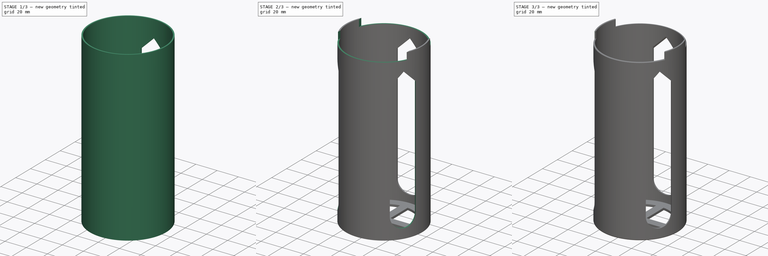
[diagram: build sequence overview — one tinted view per stage of 3, left to right]
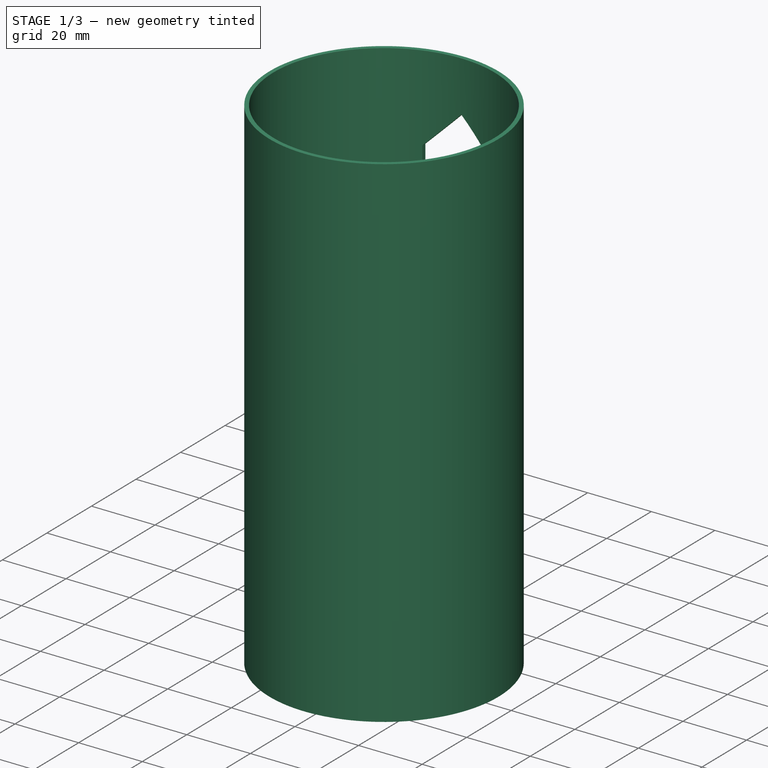
[diagram: stage 1 of 3 — iso view after this stage's code; geometry added in this stage tinted green]
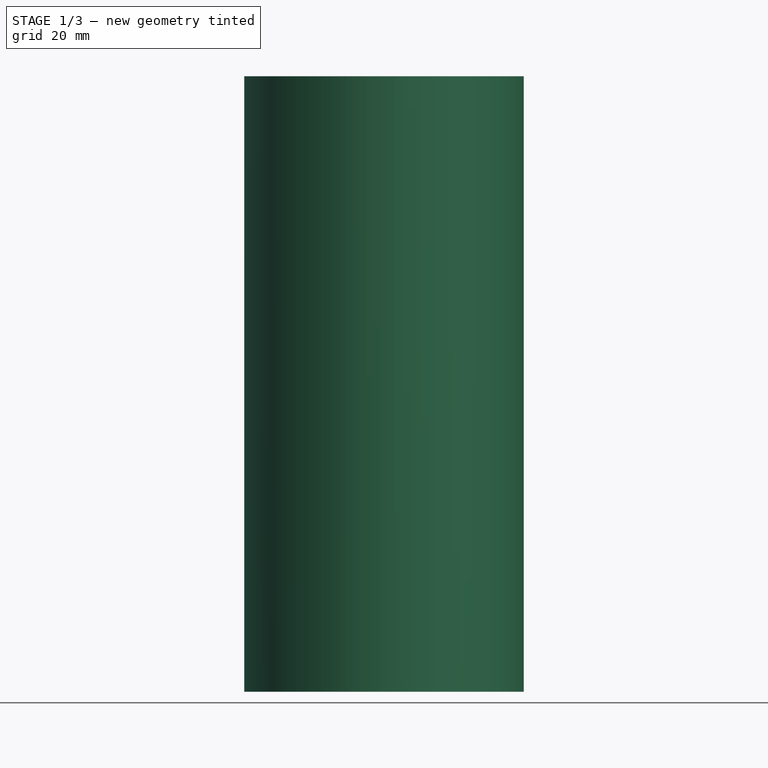
[diagram: stage 1 of 3 — front view after this stage's code; geometry added in this stage tinted green]
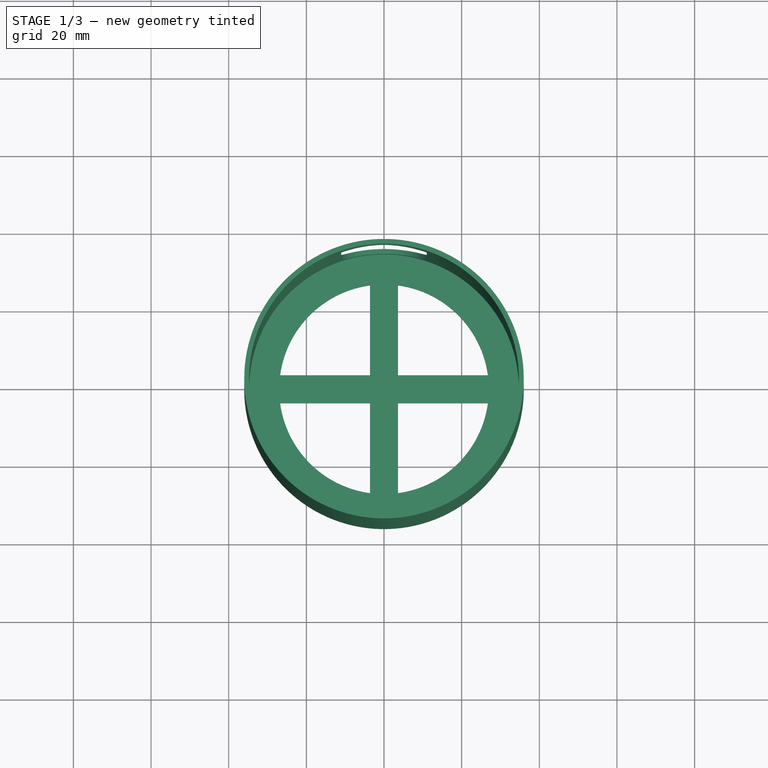
[diagram: stage 1 of 3 — top view after this stage's code; geometry added in this stage tinted green]
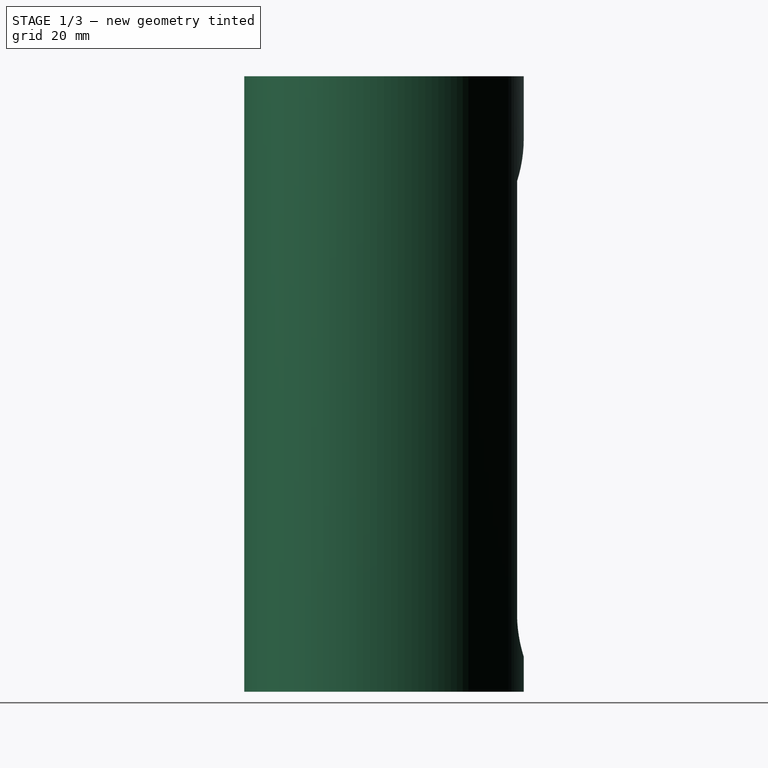
[diagram: stage 1 of 3 — right view after this stage's code; geometry added in this stage tinted green]
FCSTD DOCUMENT  (FreeCAD 2023.131R26244 +5365 (Git))
Label: Mason Jar Petri Dish Holder
License: All rights reserved
LicenseURL: http://en.wikipedia.org/wiki/All_rights_reserved
objects: Sketcher::SketchObject×4, PartDesign::Pad×2, PartDesign::Pocket×2, PartDesign::Fillet×2, Spreadsheet::Sheet×1, PartDesign::PolarPattern×1, PartDesign::Chamfer×1, PartDesign::Body×1
note: 33 computed .brp shape members not serialized (recipe doc carries the construction recipe); baked Part::Feature solids carry a one-line shape summary decoded from their .brp

FEATURE [Spreadsheet::Sheet] Spreadsheet  label="Parameters"
  PythonMode = false
  ShowCells = 0
  TreeRank = 1
  cells = A1=Jar Mouth Diameter; B1(jar_diameter)=72; C1=73; A2=Jar Height; B2(jar_height)=156.5; C2=161; A4=Dish Diameter; B4(dish_diameter)=69.5; C4=67.7; A5=Dish Height; B5(dish_height)=16.65; A7=Thickness; B7(thickness)=2; A8=Dishes; B8(dishes)==floor((jar_height - 2 * thickness) / dish_height); A9=Dish Height; B9(dish_stack_height)==dishes * dish_height; A10=Handle Height; B10(handle_height)==jar_height - dish_stack_height
FEATURE [Sketcher::SketchObject] Sketch
  ArcFitTolerance = 1e-06
  AttachmentSupport = -> [XY_Plane]
  ExternalBSplineMaxDegree = 5
  ExternalBSplineTolerance = 0.0001
  FullyConstrained = true
  InternalTolerance = 1e-06
  InvalidShape = false
  MakeInternals = false
  MapMode = 5
  Support = -> [XY_Plane]
  TreeRank = 12
  ValidateShape = true
  expr: Constraints[1] = <<Parameters>>.jar_diameter
  expr: Constraints[37] = <<Parameters>>.jar_diameter / 10
  expr: Constraints[3] = <<Parameters>>.jar_diameter * 0.75
  sketch-geometry (13):
    g0: Circle CenterX=0 CenterY=0 CenterZ=0 NormalX=0 NormalY=0 NormalZ=1 AngleXU=0 Radius=36
    g1: ArcOfCircle CenterX=0 CenterY=0 CenterZ=0 NormalX=0 NormalY=0 NormalZ=1 AngleXU=0 Radius=27 StartAngle=3.27532 EndAngle=4.57866
    g2: LineSegment StartX=-3.6 StartY=26.7589 StartZ=0 EndX=-3.6 EndY=3.6 EndZ=0
    g3: LineSegment StartX=-3.6 StartY=3.6 StartZ=0 EndX=-26.7589 EndY=3.6 EndZ=0
    g4: LineSegment StartX=3.6 StartY=26.7589 StartZ=0 EndX=3.6 EndY=3.6 EndZ=0
    g5: LineSegment StartX=3.6 StartY=3.6 StartZ=0 EndX=26.7589 EndY=3.6 EndZ=0
    g6: LineSegment StartX=-3.6 StartY=-26.7589 StartZ=0 EndX=-3.6 EndY=-3.6 EndZ=0
    g7: LineSegment StartX=-3.6 StartY=-3.6 StartZ=0 EndX=-26.7589 EndY=-3.6 EndZ=0
    g8: LineSegment StartX=3.6 StartY=-26.7589 StartZ=0 EndX=3.6 EndY=-3.6 EndZ=0
    g9: LineSegment StartX=3.6 StartY=-3.6 StartZ=0 EndX=26.7589 EndY=-3.6 EndZ=0
    g10: ArcOfCircle CenterX=0 CenterY=0 CenterZ=0 NormalX=0 NormalY=0 NormalZ=1 AngleXU=0 Radius=27 StartAngle=1.70453 EndAngle=3.00786
    g11: ArcOfCircle CenterX=0 CenterY=0 CenterZ=0 NormalX=0 NormalY=0 NormalZ=1 AngleXU=0 Radius=27 StartAngle=0.133732 EndAngle=1.43706
    g12: ArcOfCircle CenterX=0 CenterY=0 CenterZ=0 NormalX=0 NormalY=0 NormalZ=1 AngleXU=0 Radius=27 StartAngle=4.84612 EndAngle=6.14945
  constraints (38):
    c: Coincident(g0,g-1)
    c: Diameter(g0) = 72
    c: Coincident(g1,g0)
    c: Diameter(g1) = 54
    c: Vertical(g2)
    c: Coincident(g3,g2)
    c: Horizontal(g3)
    c: Equal(g2,g3)
    c: Vertical(g4)
    c: Coincident(g5,g4)
    c: Horizontal(g5)
    c: Vertical(g6)
    c: Coincident(g7,g6)
    c: Horizontal(g7)
    c: Vertical(g8)
    c: Coincident(g9,g8)
    c: Horizontal(g9)
    c: Equal(g2,g4)
    c: Equal(g2,g5)
    c: Equal(g2,g7)
    c: Equal(g2,g6)
    c: Equal(g2,g8)
    c: Equal(g2,g9)
    c: Coincident(g10,g3)
    c: Coincident(g1,g7)
    c: Equal(g1,g10)
    c: Coincident(g11,g4)
    c: Coincident(g10,g2)
    c: Coincident(g1,g10)
    c: Equal(g1,g11)
    c: Coincident(g12,g9)
    c: Coincident(g11,g5)
    c: Coincident(g1,g11)
    c: Equal(g1,g12)
    c: Coincident(g1,g6)
    c: Coincident(g12,g8)
    c: Coincident(g1,g12)
    c: DistanceX(g2,g4) = 7.2
FEATURE [PartDesign::Pad] Pad
  AddSubType = 0
  AlongSketchNormal = false
  AutoTaperInnerAngle = true
  CheckUpToFaceLimits = true
  ClaimChildren = false
  Direction = (0,0,1)
  Fit = 0
  FitJoin = 0
  InnerFit = 0
  InnerFitJoin = 0
  InvalidShape = false
  Length = 2
  Length2 = 100
  Linearize = true
  NewSolid = false
  Profile = -> Sketch
  Reversed = true
  Suppress = false
  TaperInnerAngle = 0
  TaperInnerAngleRev = 0
  TreeRank = 13
  Type = 0
  ValidateShape = true
  _ProfileBasedVersion = 1
  expr: Length = <<Parameters>>.thickness
FEATURE [Sketcher::SketchObject] Sketch001
  ArcFitTolerance = 1e-06
  AttachmentSupport = -> [Pad]
  ExternalBSplineMaxDegree = 5
  ExternalBSplineTolerance = 0.0001
  FullyConstrained = true
  InternalTolerance = 1e-06
  InvalidShape = false
  MakeInternals = false
  MapMode = 5
  Support = -> [Pad]
  TreeRank = 14
  ValidateShape = true
  expr: Constraints[2] = <<Parameters>>.jar_diameter
  expr: Constraints[3] = <<Parameters>>.dish_diameter
  sketch-geometry (2):
    g0: Circle CenterX=0 CenterY=0 CenterZ=0 NormalX=0 NormalY=0 NormalZ=1 AngleXU=0 Radius=36
    g1: Circle CenterX=0 CenterY=0 CenterZ=0 NormalX=0 NormalY=0 NormalZ=1 AngleXU=0 Radius=34.75
  constraints (4):
    c: Coincident(g0,g-1)
    c: Coincident(g1,g0)
    c: Diameter(g0) = 72
    c: Diameter(g1) = 69.5
FEATURE [PartDesign::Pad] Pad001
  AddSubType = 0
  AlongSketchNormal = false
  AutoTaperInnerAngle = true
  BaseFeature = -> Pad
  CheckUpToFaceLimits = true
  ClaimChildren = false
  Direction = (0,0,1)
  Fit = 0
  FitJoin = 0
  InnerFit = 0
  InnerFitJoin = 0
  InvalidShape = false
  Length = 156.5
  Length2 = 100
  Linearize = true
  NewSolid = false
  Profile = -> Sketch001
  Suppress = false
  TaperInnerAngle = 0
  TaperInnerAngleRev = 0
  TreeRank = 15
  Type = 0
  ValidateShape = true
  _ProfileBasedVersion = 1
  expr: Length = <<Parameters>>.jar_height
FEATURE [Sketcher::SketchObject] Sketch002
  ArcFitTolerance = 1e-06
  AttachmentSupport = -> [XZ_Plane]
  ExternalBSplineMaxDegree = 5
  ExternalBSplineTolerance = 0.0001
  FullyConstrained = true
  InternalTolerance = 1e-06
  InvalidShape = false
  MakeInternals = false
  MapMode = 5
  Placement = pos=(0,0,0) rot=(1,0,0;1.5708rad)
  Support = -> [XZ_Plane]
  TreeRank = 16
  ValidateShape = true
  expr: Constraints[12] = max(22, <<Parameters>>.dish_stack_height / 10) / 2
  expr: Constraints[13] = <<Parameters>>.jar_height - max(16, <<Parameters>>.dish_stack_height / 15)
  expr: Constraints[1] = max(18, <<Parameters>>.dish_stack_height / 15)
  sketch-geometry (5):
    g0: ArcOfCircle CenterX=0 CenterY=18 CenterZ=0 NormalX=0 NormalY=0 NormalZ=1 AngleXU=0 Radius=11 StartAngle=3.14159 EndAngle=6.28319
    g1: LineSegment StartX=11 StartY=129.5 StartZ=0 EndX=11 EndY=18 EndZ=0
    g2: LineSegment StartX=-11 StartY=129.5 StartZ=0 EndX=-11 EndY=18 EndZ=0
    g3: LineSegment StartX=-11 StartY=129.5 StartZ=0 EndX=0 EndY=140.5 EndZ=0
    g4: LineSegment StartX=11 StartY=129.5 StartZ=0 EndX=0 EndY=140.5 EndZ=0
  constraints (15):
    c: PointOnObject(g0,g-2)
    c: DistanceY(g-1,g0) = 18
    c: Coincident(g0,g1)
    c: Tangent(g0,g2) = -1.5708
    c: DistanceY(g0,g0) = 0
    c: Coincident(g3,g2)
    c: PointOnObject(g3,g-2)
    c: Coincident(g4,g1)
    c: Coincident(g4,g3)
    c: Equal(g3,g4)
    c: Vertical(g2)
    c: Vertical(g1)
    c: Radius(g0) = 11
    c: DistanceY(g-1,g3) = 140.5
    c: Angle(g3,g4) = 1.5708
FEATURE [PartDesign::Pocket] Pocket
  AddSubType = 1
  AutoTaperInnerAngle = true
  BaseFeature = -> Pad001
  CheckUpToFaceLimits = true
  ClaimChildren = false
  Fit = 0
  FitJoin = 0
  InnerFit = 0
  InnerFitJoin = 0
  InvalidShape = false
  Length = 100
  Length2 = 100
  Linearize = true
  NewSolid = false
  Profile = -> Sketch002
  Suppress = false
  TaperInnerAngle = 0
  TaperInnerAngleRev = 0
  TreeRank = 17
  Type = 0
  ValidateShape = true
  _ProfileBasedVersion = 1
  _Version = 1
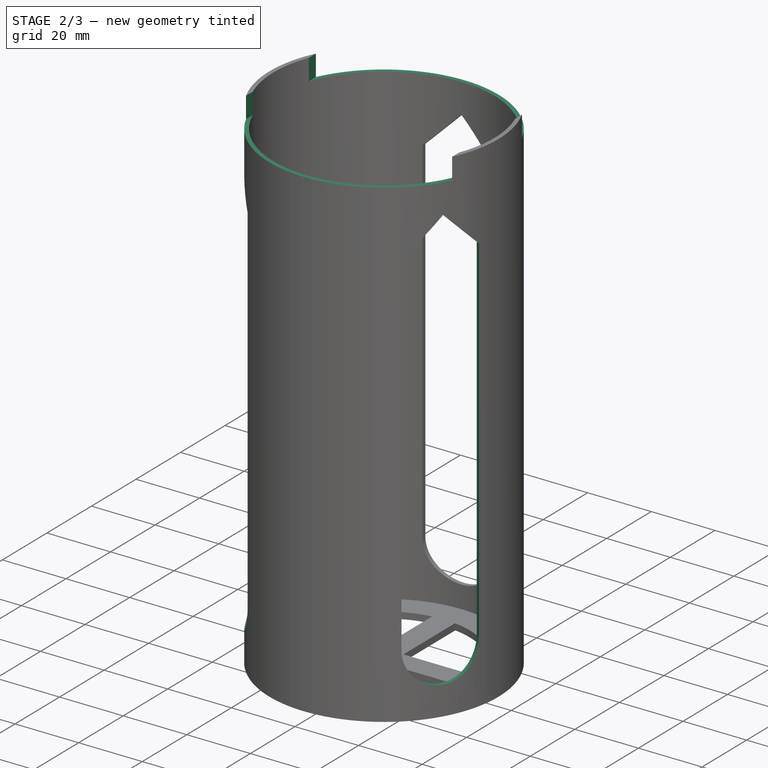
[diagram: stage 2 of 3 — iso view after this stage's code; geometry added in this stage tinted green]
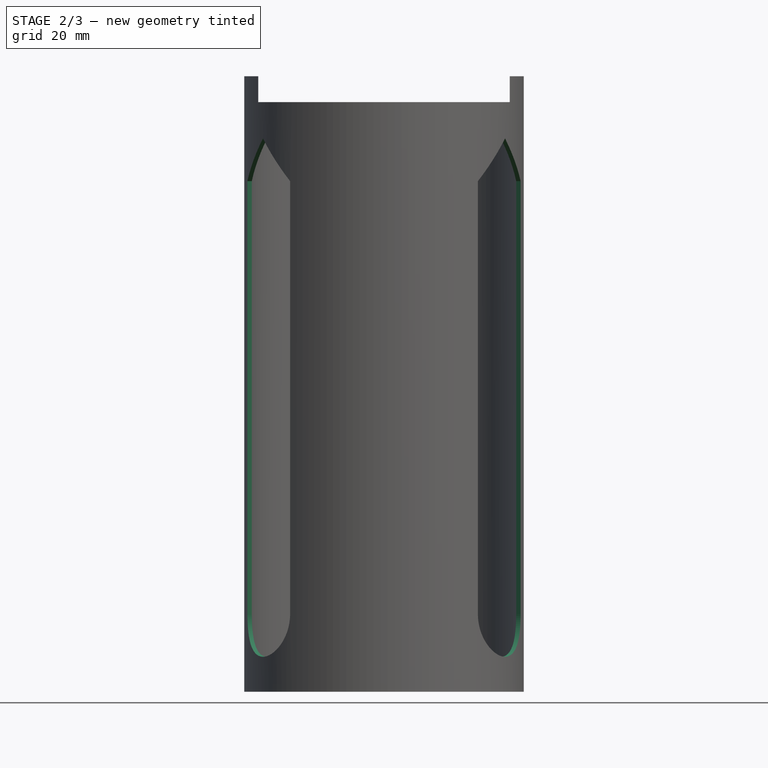
[diagram: stage 2 of 3 — front view after this stage's code; geometry added in this stage tinted green]
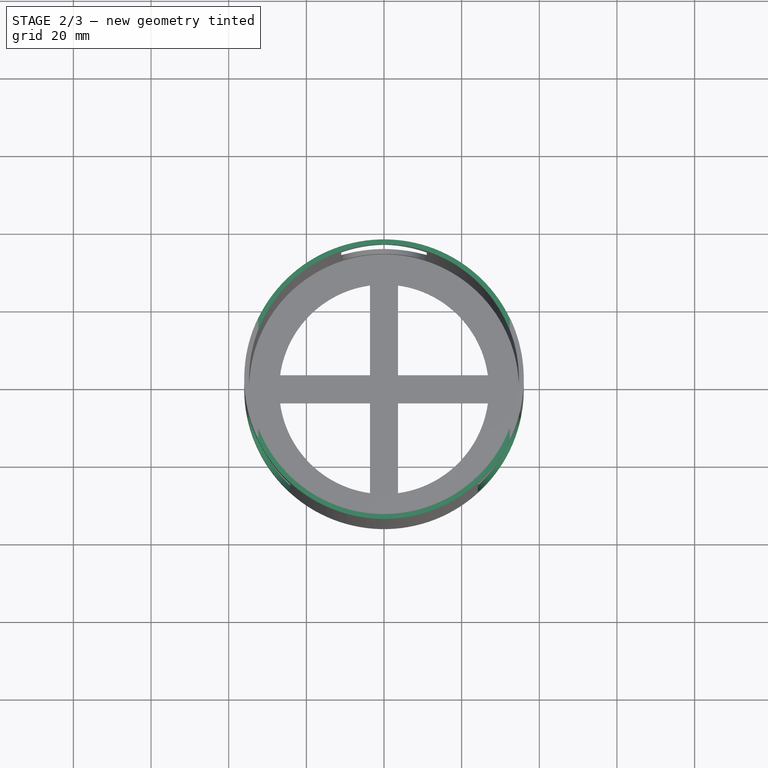
[diagram: stage 2 of 3 — top view after this stage's code; geometry added in this stage tinted green]
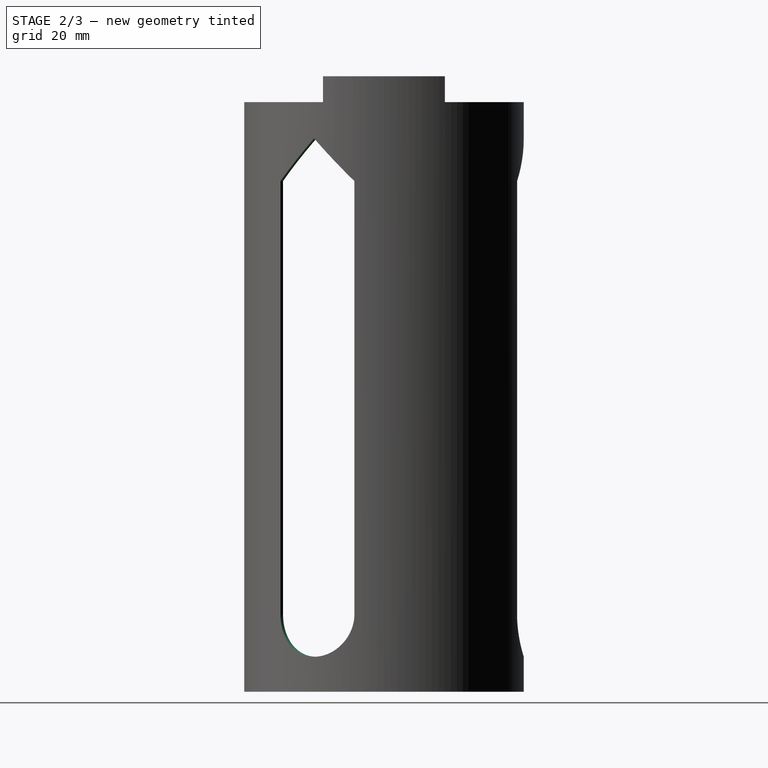
[diagram: stage 2 of 3 — right view after this stage's code; geometry added in this stage tinted green]
FEATURE [PartDesign::PolarPattern] PolarPattern
  AddSubType = 0
  Angle = 360
  Axis = -> Z_Axis
  BaseFeature = -> Pocket
  CopyShape = false
  InvalidShape = false
  NewSolid = false
  Occurrences = 3
  OriginalSubs = -> [Pocket]
  Originals = -> [Pocket]
  ParallelTransform = true
  SubTransform = true
  Suppress = false
  TreeRank = 18
  ValidateShape = true
  _Version = 3
FEATURE [Sketcher::SketchObject] Sketch003
  ArcFitTolerance = 1e-06
  AttachmentSupport = -> [XZ_Plane]
  ExternalBSplineMaxDegree = 5
  ExternalBSplineTolerance = 0.0001
  FullyConstrained = true
  InternalTolerance = 1e-06
  InvalidShape = false
  MakeInternals = false
  MapMode = 5
  Placement = pos=(0,0,0) rot=(1,0,0;1.5708rad)
  Support = -> [XZ_Plane]
  TreeRank = 19
  ValidateShape = true
  expr: Constraints[10] = <<Parameters>>.jar_height
  expr: Constraints[8] = <<Parameters>>.jar_diameter * 0.9
  expr: Constraints[9] = <<Parameters>>.handle_height
  sketch-geometry (4):
    g0: LineSegment StartX=-32.4 StartY=156.5 StartZ=0 EndX=32.4 EndY=156.5 EndZ=0
    g1: LineSegment StartX=32.4 StartY=156.5 StartZ=0 EndX=32.4 EndY=149.85 EndZ=0
    g2: LineSegment StartX=32.4 StartY=149.85 StartZ=0 EndX=-32.4 EndY=149.85 EndZ=0
    g3: LineSegment StartX=-32.4 StartY=149.85 StartZ=0 EndX=-32.4 EndY=156.5 EndZ=0
  constraints (11):
    c: Coincident(g0,g1)
    c: Coincident(g1,g2)
    c: Coincident(g2,g3)
    c: Coincident(g3,g0)
    c: Horizontal(g2)
    c: Vertical(g1)
    c: Vertical(g3)
    c: Symmetric(g0,g0,g-2)
    c: DistanceX(g0,g0) = 64.8
    c: DistanceY(g1,g0) = 6.65
    c: DistanceY(g-1,g0) = 156.5
FEATURE [PartDesign::Pocket] Pocket001
  AddSubType = 1
  AutoTaperInnerAngle = true
  BaseFeature = -> PolarPattern
  CheckUpToFaceLimits = true
  ClaimChildren = false
  Fit = 0
  FitJoin = 0
  InnerFit = 0
  InnerFitJoin = 0
  InvalidShape = false
  Length = 100
  Length2 = 100
  Linearize = true
  NewSolid = false
  Profile = -> Sketch003
  Suppress = false
  TaperInnerAngle = 0
  TaperInnerAngleRev = 0
  TreeRank = 20
  Type = 4
  ValidateShape = true
  _ProfileBasedVersion = 1
  _Version = 1
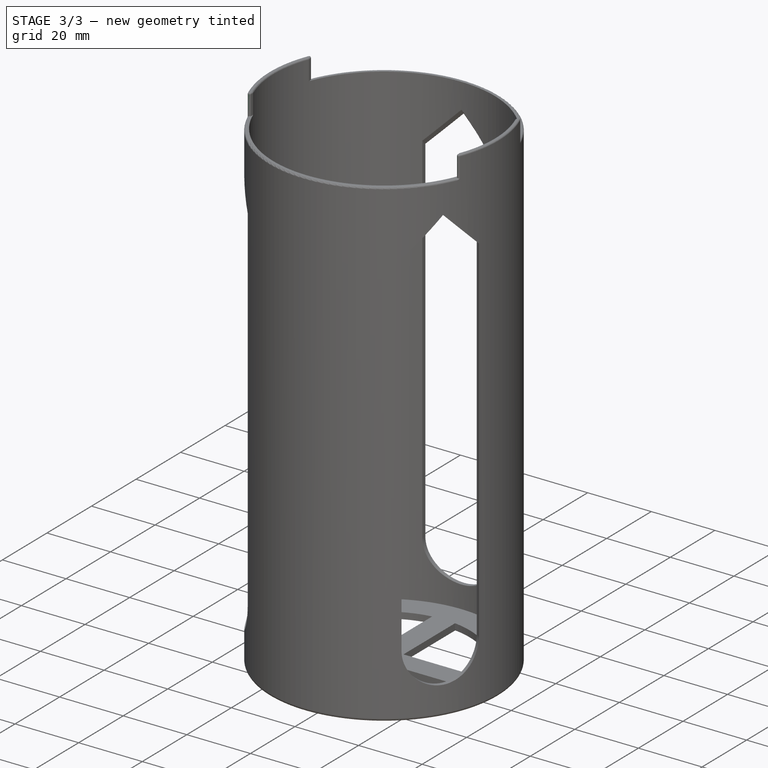
[diagram: stage 3 of 3 — iso view after this stage's code; geometry added in this stage tinted green]
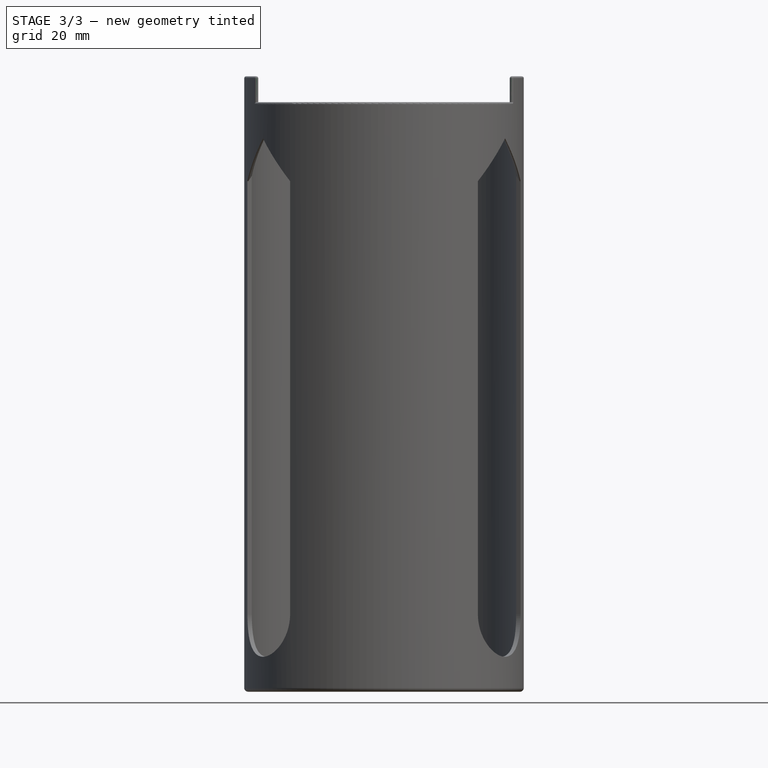
[diagram: stage 3 of 3 — front view after this stage's code; geometry added in this stage tinted green]
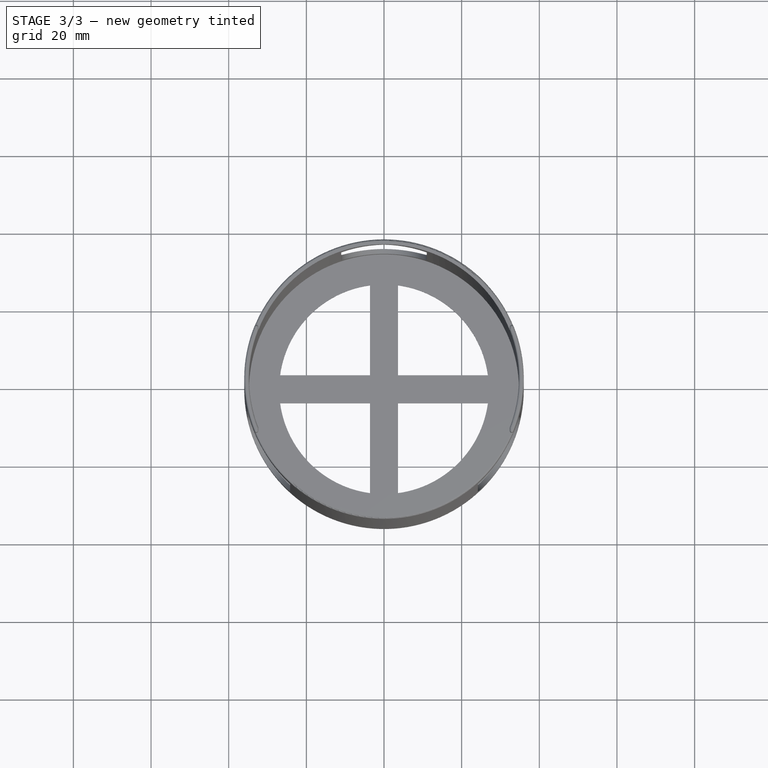
[diagram: stage 3 of 3 — top view after this stage's code; geometry added in this stage tinted green]
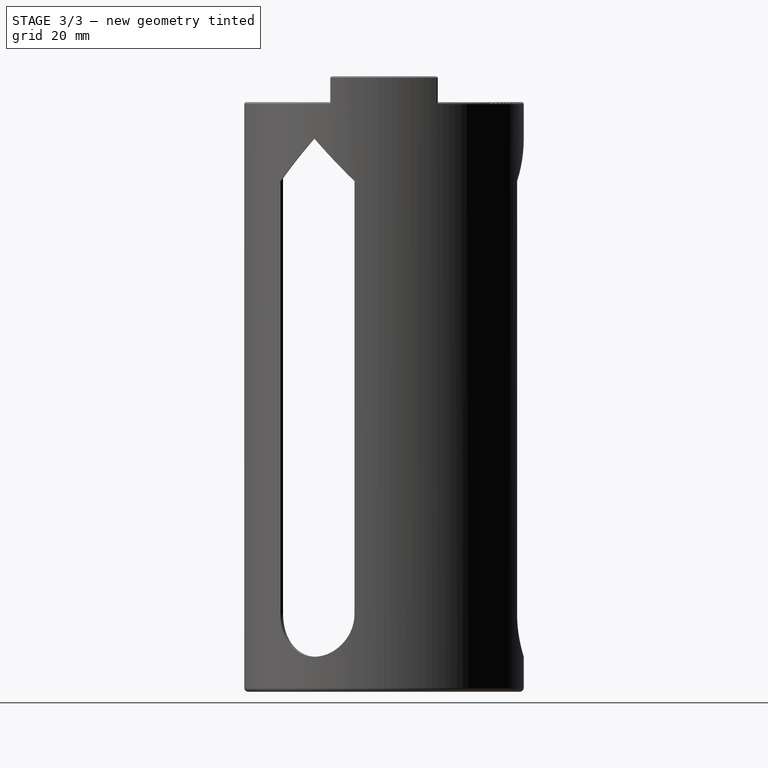
[diagram: stage 3 of 3 — right view after this stage's code; geometry added in this stage tinted green]
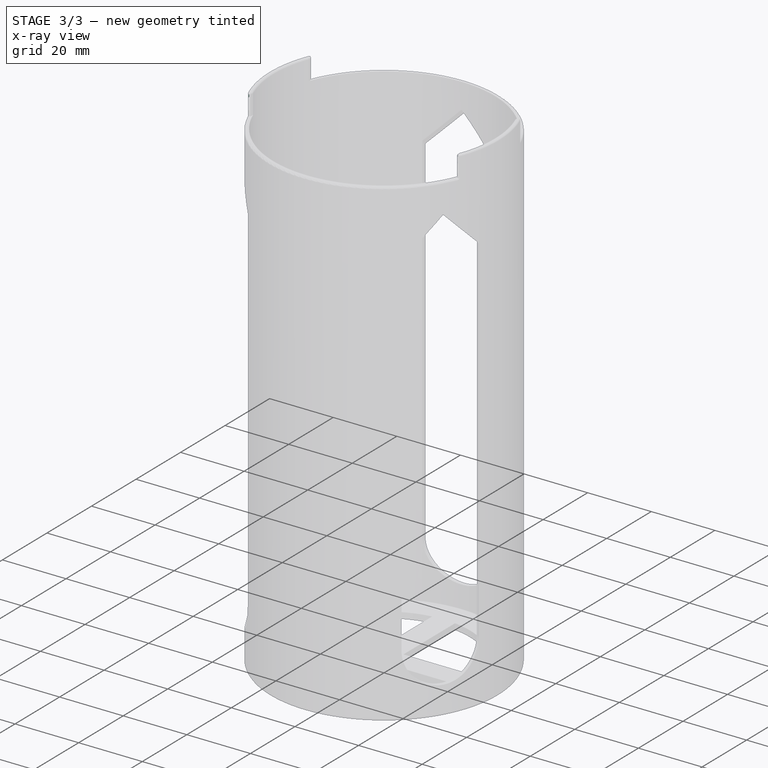
[diagram: stage 3 of 3 — x-ray composite at the iso view; earlier geometry ghosted, this stage's added geometry solid]
FEATURE [PartDesign::Fillet] Fillet  label="Bottom Fillet"
  AddSubType = 0
  Base = -> Pocket001 [Edge3]
  BaseFeature = -> Pocket001
  InvalidShape = false
  NewSolid = false
  Radius = 1
  SupportTransform = false
  Suppress = false
  TreeRank = 21
  ValidateShape = true
  expr: Radius = 1mm
FEATURE [PartDesign::Fillet] Fillet001  label="Top Fillet"
  AddSubType = 0
  Base = -> Fillet [Edge13,Edge9,Edge45,Edge46,Edge15,Edge7,Edge43,Edge44,Edge53,Edge54,Edge51,Edge11,Edge12,Edge10,Edge14,Edge8]
  BaseFeature = -> Fillet
  InvalidShape = false
  NewSolid = false
  Radius = 0.5
  SupportTransform = false
  Suppress = false
  TreeRank = 22
  ValidateShape = true
FEATURE [PartDesign::Chamfer] Chamfer
  AddSubType = 0
  Angle = 45
  Base = -> Fillet001 [Edge86,Edge88,Edge76,Edge78,Edge66,Edge68]
  BaseFeature = -> Fillet001
  ChamferType = 0
  FlipDirection = false
  InvalidShape = false
  NewSolid = false
  Size = 1
  Size2 = 1
  SupportTransform = false
  Suppress = false
  TreeRank = 23
  ValidateShape = true
FEATURE [PartDesign::Body] Body
  AutoGroupSolids = false
  ClaimAllChildren = false
  ExportMode = 0
  Group = -> [Sketch,Pad,Sketch001,Pad001,Sketch002,Pocket,PolarPattern,Sketch003,Pocket001,Fillet,Fillet001,Chamfer]
  InvalidShape = false
  Origin = -> Origin
  Tip = -> Chamfer
  TreeRank = 11
  ValidateShape = true
  _ExportChildren = -> [Pad,Pad001,Pocket,PolarPattern,Pocket001,Fillet,Fillet001,Chamfer]
  _GroupVersion = 1
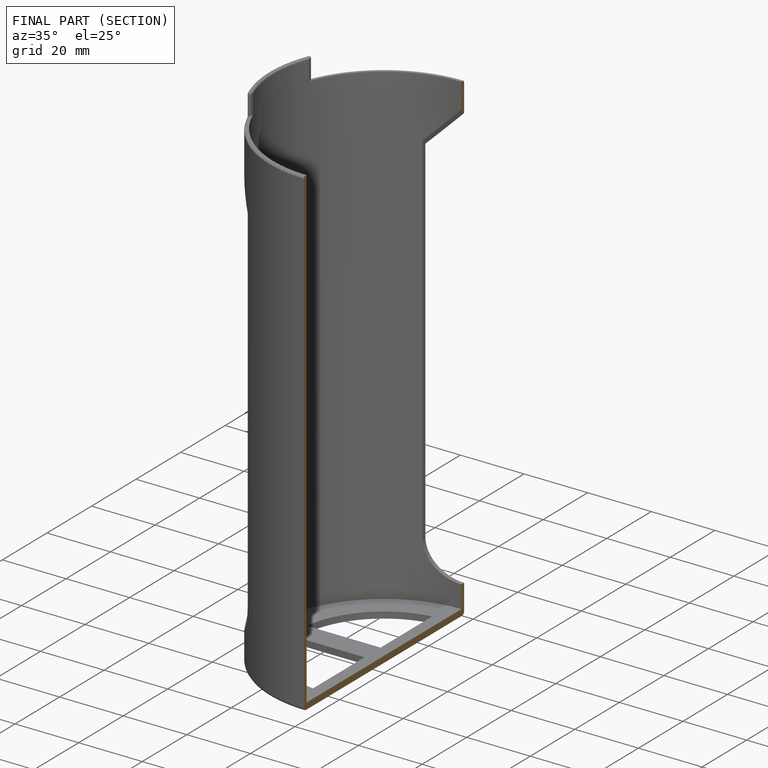
[diagram: finished part — half-section view (interior)]
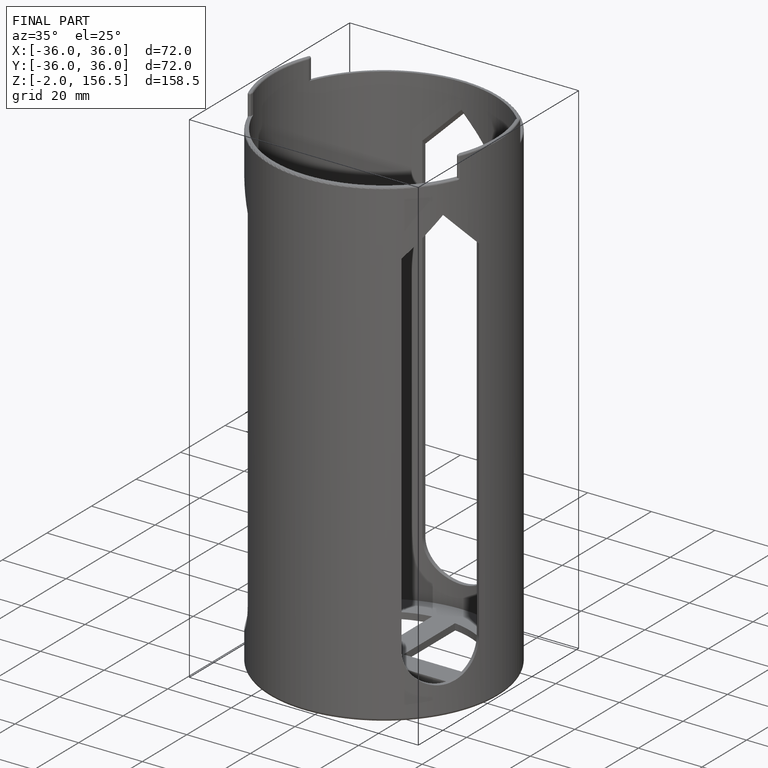
[diagram: finished part — iso view with bounding-box wireframe]
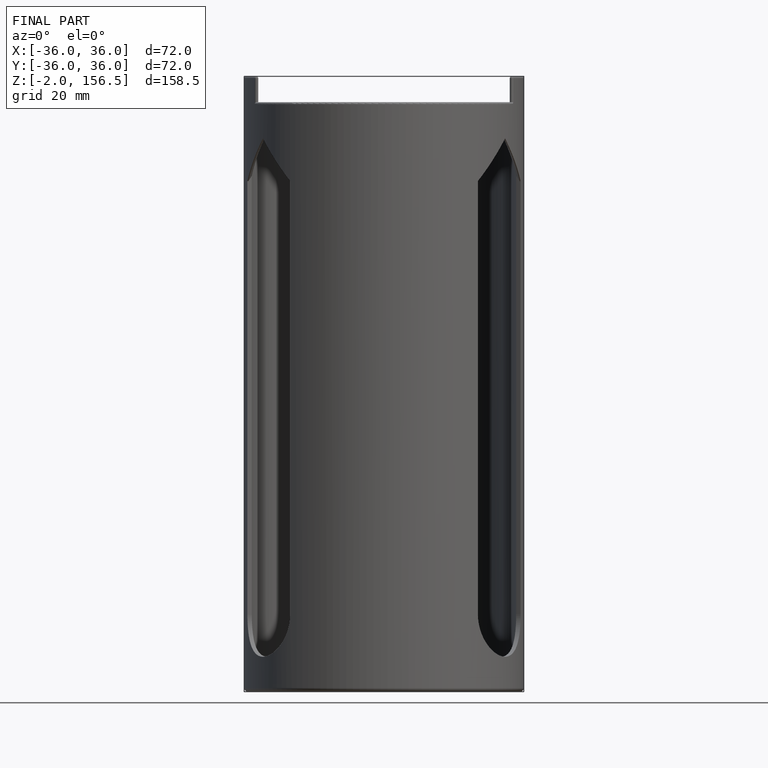
[diagram: finished part — front view with bounding-box wireframe]
